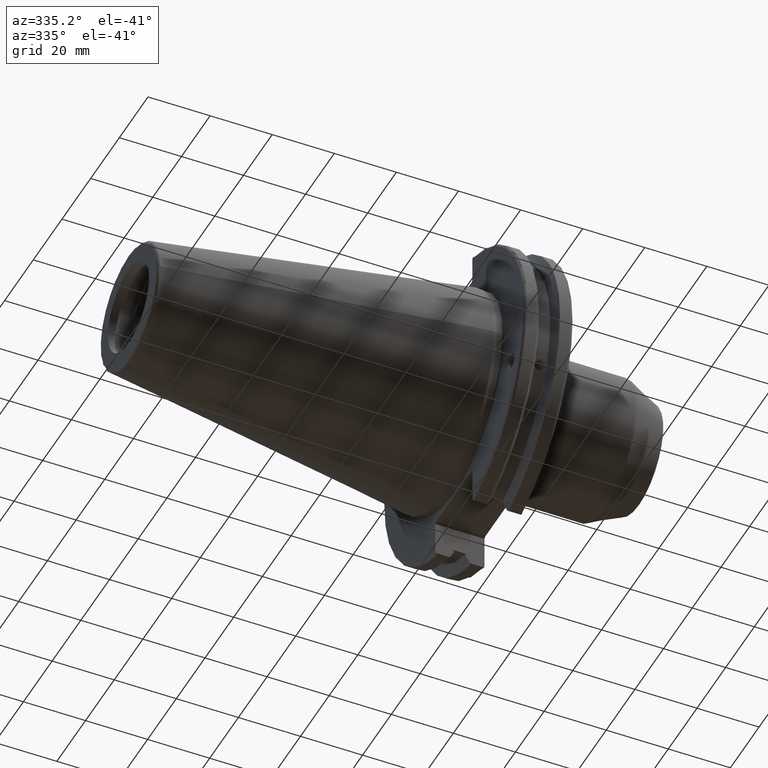
[diagram: clean part render]
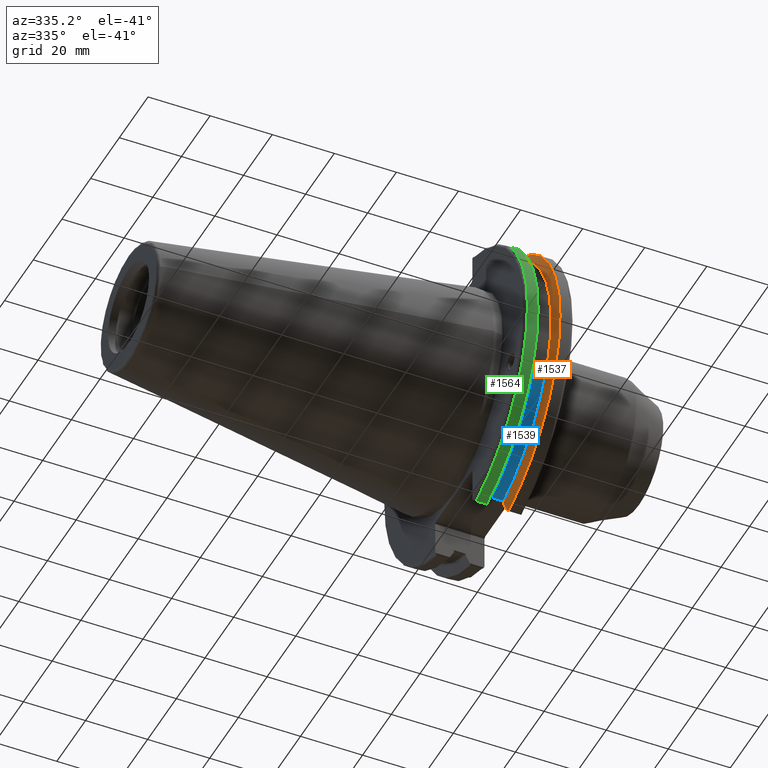
[diagram: same view with three faces highlighted in distinct colors, each labeled with its STEP entity id]
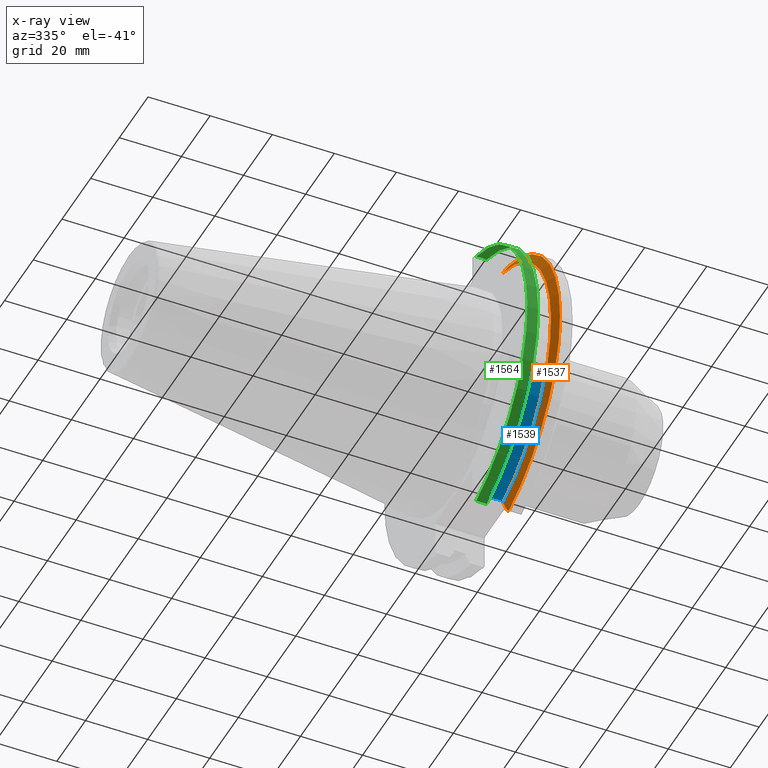
[diagram: x-ray of the same camera — body ghosted, the three highlighted faces saturated]
A machine part, auxiliary view with three faces highlighted in distinct colors.
The next image is the same camera in x-ray (body ghosted, the three faces saturated) — at least one of them is partly hidden behind the body in this view.
Their STEP definitions:

[orange] entity #1537 — the highlighted conical surface has half-angle 60 deg.
#15=(
BOUNDED_CURVE()
B_SPLINE_CURVE(2,(#2769,#2770,#2771),.UNSPECIFIED.,.F.,.F.)
B_SPLINE_CURVE_WITH_KNOTS((3,3),(0.,0.275823910674144),.UNSPECIFIED.)
CURVE()
GEOMETRIC_REPRESENTATION_ITEM()
RATIONAL_B_SPLINE_CURVE((1.,1.00038235575579,1.00012873637156))
REPRESENTATION_ITEM('')
);
#16=(
BOUNDED_CURVE()
B_SPLINE_CURVE(2,(#2773,#2774,#2775),.UNSPECIFIED.,.F.,.F.)
B_SPLINE_CURVE_WITH_KNOTS((3,3),(0.,0.0648240472898149),.UNSPECIFIED.)
CURVE()
GEOMETRIC_REPRESENTATION_ITEM()
RATIONAL_B_SPLINE_CURVE((1.,1.00011477674811,1.00019140645905))
REPRESENTATION_ITEM('')
);
#17=(
BOUNDED_CURVE()
B_SPLINE_CURVE(2,(#2779,#2780,#2781),.UNSPECIFIED.,.F.,.F.)
B_SPLINE_CURVE_WITH_KNOTS((3,3),(0.325260944932422,0.390084992222202),
 .UNSPECIFIED.)
CURVE()
GEOMETRIC_REPRESENTATION_ITEM()
RATIONAL_B_SPLINE_CURVE((1.00019140645944,1.00011477674834,1.))
REPRESENTATION_ITEM('')
);
#18=(
BOUNDED_CURVE()
B_SPLINE_CURVE(2,(#2783,#2784,#2785),.UNSPECIFIED.,.F.,.F.)
B_SPLINE_CURVE_WITH_KNOTS((3,3),(0.0558332664505639,0.331657177124505),
 .UNSPECIFIED.)
CURVE()
GEOMETRIC_REPRESENTATION_ITEM()
RATIONAL_B_SPLINE_CURVE((1.00012873636973,1.00038235575037,1.))
REPRESENTATION_ITEM('')
);
#45=CONICAL_SURFACE('',#1678,47.8172386482472,1.0471975511966);
#143=CIRCLE('',#1679,46.4219772964944);
#144=CIRCLE('',#1680,49.2125);
#145=CIRCLE('',#1681,46.4219772964944);
#213=FACE_OUTER_BOUND('',#312,.T.);
#312=EDGE_LOOP('',(#1157,#1158,#1159,#1160,#1161,#1162,#1163,#1164,#1165));
#402=B_SPLINE_CURVE_WITH_KNOTS('',3,(#2678,#2679,#2680,#2681,#2682,#2683,
#2684,#2685),.UNSPECIFIED.,.F.,.F.,(4,2,2,4),(0.42671286835872,0.441644498666905,
0.480313313223129,0.518982127779352),.UNSPECIFIED.);
#406=B_SPLINE_CURVE_WITH_KNOTS('',3,(#2740,#2741,#2742,#2743,#2744,#2745,
#2746,#2747),.UNSPECIFIED.,.F.,.F.,(4,2,2,4),(0.518982127779352,0.557650942335576,
0.5963197568918,0.611251387199985),.UNSPECIFIED.);
#673=VERTEX_POINT('',#2675);
#674=VERTEX_POINT('',#2677);
#681=VERTEX_POINT('',#2738);
#687=VERTEX_POINT('',#2766);
#688=VERTEX_POINT('',#2768);
#689=VERTEX_POINT('',#2772);
#690=VERTEX_POINT('',#2776);
#691=VERTEX_POINT('',#2778);
#692=VERTEX_POINT('',#2782);
#849=EDGE_CURVE('',#674,#673,#402,.T.);
#857=EDGE_CURVE('',#673,#681,#406,.T.);
#865=EDGE_CURVE('',#681,#687,#143,.T.);
#866=EDGE_CURVE('',#687,#688,#15,.T.);
#867=EDGE_CURVE('',#689,#688,#16,.T.);
#868=EDGE_CURVE('',#690,#689,#144,.T.);
#869=EDGE_CURVE('',#691,#690,#17,.T.);
#870=EDGE_CURVE('',#691,#692,#18,.T.);
#871=EDGE_CURVE('',#692,#674,#145,.T.);
#1157=ORIENTED_EDGE('',*,*,#849,.T.);
#1158=ORIENTED_EDGE('',*,*,#857,.T.);
#1159=ORIENTED_EDGE('',*,*,#865,.T.);
#1160=ORIENTED_EDGE('',*,*,#866,.T.);
#1161=ORIENTED_EDGE('',*,*,#867,.F.);
#1162=ORIENTED_EDGE('',*,*,#868,.F.);
#1163=ORIENTED_EDGE('',*,*,#869,.F.);
#1164=ORIENTED_EDGE('',*,*,#870,.T.);
#1165=ORIENTED_EDGE('',*,*,#871,.T.);
#1537=ADVANCED_FACE('',(#213),#45,.T.);
#1678=AXIS2_PLACEMENT_3D('',#2765,#1931,#1932);
#1679=AXIS2_PLACEMENT_3D('',#2767,#1933,#1934);
#1680=AXIS2_PLACEMENT_3D('',#2777,#1935,#1936);
#1681=AXIS2_PLACEMENT_3D('',#2786,#1937,#1938);
#1931=DIRECTION('center_axis',(1.,0.,0.));
#1932=DIRECTION('ref_axis',(0.,-1.,-1.22464679914735E-16));
#1933=DIRECTION('center_axis',(1.,0.,0.));
#1934=DIRECTION('ref_axis',(0.,0.,-1.));
#1935=DIRECTION('center_axis',(1.,0.,0.));
#1936=DIRECTION('ref_axis',(0.,0.,-1.));
#1937=DIRECTION('center_axis',(1.,0.,0.));
#1938=DIRECTION('ref_axis',(0.,0.,-1.));
#2675=CARTESIAN_POINT('',(13.227,-43.923494649906,-15.9868446375166));
#2677=CARTESIAN_POINT('',(13.042,-43.9096390749305,-15.0646464421033));
#2678=CARTESIAN_POINT('Ctrl Pts',(13.042,-43.9096390749305,-15.0646464421033));
#2679=CARTESIAN_POINT('Ctrl Pts',(13.0589815609661,-43.9250360001461,-15.1104047527575));
#2680=CARTESIAN_POINT('Ctrl Pts',(13.0750132459668,-43.9385582852181,-15.1564111356409));
#2681=CARTESIAN_POINT('Ctrl Pts',(13.1287132615496,-43.9797830409459,-15.3217566390708));
#2682=CARTESIAN_POINT('Ctrl Pts',(13.1648838933644,-43.9989016655819,-15.4570249042868));
#2683=CARTESIAN_POINT('Ctrl Pts',(13.2141913174802,-43.9931221605126,-15.7289849146254));
#2684=CARTESIAN_POINT('Ctrl Pts',(13.227,-43.9675796948952,-15.8657219718732));
#2685=CARTESIAN_POINT('Ctrl Pts',(13.227,-43.923494649906,-15.9868446375166));
#2738=CARTESIAN_POINT('',(13.042,-43.3201030900029,-16.6843832486479));
#2740=CARTESIAN_POINT('Ctrl Pts',(13.227,-43.923494649906,-15.9868446375166));
#2741=CARTESIAN_POINT('Ctrl Pts',(13.227,-43.8794096049169,-16.10796730316));
#2742=CARTESIAN_POINT('Ctrl Pts',(13.2141913174802,-43.8110833825828,-16.2291323464527));
#2743=CARTESIAN_POINT('Ctrl Pts',(13.1648838933644,-43.6406982153492,-16.441180795372));
#2744=CARTESIAN_POINT('Ctrl Pts',(13.1287132615496,-43.5391037343221,-16.5325130832406));
#2745=CARTESIAN_POINT('Ctrl Pts',(13.0750132459668,-43.4012416983557,-16.6326763251437));
#2746=CARTESIAN_POINT('Ctrl Pts',(13.0589815609661,-43.3613106941341,-16.6592273018006));
#2747=CARTESIAN_POINT('Ctrl Pts',(13.042,-43.3201030900029,-16.6843832486479));
#2765=CARTESIAN_POINT('Origin',(13.8475545170244,0.,0.));
#2766=CARTESIAN_POINT('',(13.042,-12.95,-44.5791147973604));
#2767=CARTESIAN_POINT('Origin',(13.042,0.,0.));
#2768=CARTESIAN_POINT('',(14.3747103943757,-12.95,-46.9780755322917));
#2769=CARTESIAN_POINT('Ctrl Pts',(13.042,-12.95,-44.5791147973604));
#2770=CARTESIAN_POINT('Ctrl Pts',(13.6908955094606,-12.95,-45.7494966802493));
#2771=CARTESIAN_POINT('Ctrl Pts',(14.3747103943757,-12.95,-46.9780755322917));
#2772=CARTESIAN_POINT('',(14.6531090340487,-13.4317035994433,-47.3440544806494));
#2773=CARTESIAN_POINT('Ctrl Pts',(14.6531090340487,-13.4317035994433,-47.3440544806494));
#2774=CARTESIAN_POINT('Ctrl Pts',(14.5128310333618,-13.1896660169967,-47.1601640966265));
#2775=CARTESIAN_POINT('Ctrl Pts',(14.3747103943757,-12.95,-46.9780755322917));
#2776=CARTESIAN_POINT('',(14.6531090340487,-13.4317035994433,47.3440544806494));
#2777=CARTESIAN_POINT('Origin',(14.6531090340487,0.,0.));
#2778=CARTESIAN_POINT('',(14.3747103943757,-12.95,46.9780755322917));
#2779=CARTESIAN_POINT('Ctrl Pts',(14.3747103943757,-12.95,46.9780755322917));
#2780=CARTESIAN_POINT('Ctrl Pts',(14.5128310333618,-13.1896660169966,47.1601640966265));
#2781=CARTESIAN_POINT('Ctrl Pts',(14.6531090340487,-13.4317035994433,47.3440544806494));
#2782=CARTESIAN_POINT('',(13.042,-12.95,44.5791147973604));
#2783=CARTESIAN_POINT('Ctrl Pts',(14.3747103943757,-12.95,46.9780755322917));
#2784=CARTESIAN_POINT('Ctrl Pts',(13.6908955094594,-12.95,45.7494966802471));
#2785=CARTESIAN_POINT('Ctrl Pts',(13.042,-12.95,44.5791147973604));
#2786=CARTESIAN_POINT('Origin',(13.042,0.,0.));

[blue] entity #1539 — the highlighted cylindrical surface (partial cylindrical patch) has radius 45.6435 mm, axis along (1, 0, 0).
#146=CIRCLE('',#1683,45.6435);
#147=CIRCLE('',#1685,45.6435);
#215=FACE_OUTER_BOUND('',#314,.T.);
#314=EDGE_LOOP('',(#1170,#1171,#1172,#1173));
#405=B_SPLINE_CURVE_WITH_KNOTS('',3,(#2723,#2724,#2725,#2726,#2727,#2728,
#2729,#2730,#2731,#2732,#2733,#2734,#2735,#2736,#2737),.UNSPECIFIED.,.F.,
 .F.,(4,2,2,3,2,2,4),(-0.231381164054419,-0.158232381135623,-0.0791161905678115,
0.,0.0791161905678115,0.158232381135623,0.231381164054565),
 .UNSPECIFIED.);
#463=LINE('',#2794,#556);
#556=VECTOR('',#1948,10.);
#679=VERTEX_POINT('',#2720);
#680=VERTEX_POINT('',#2722);
#693=VERTEX_POINT('',#2788);
#694=VERTEX_POINT('',#2792);
#855=EDGE_CURVE('',#680,#679,#405,.T.);
#872=EDGE_CURVE('',#680,#693,#146,.T.);
#874=EDGE_CURVE('',#679,#694,#147,.T.);
#875=EDGE_CURVE('',#694,#693,#463,.T.);
#1170=ORIENTED_EDGE('',*,*,#855,.T.);
#1171=ORIENTED_EDGE('',*,*,#874,.T.);
#1172=ORIENTED_EDGE('',*,*,#875,.T.);
#1173=ORIENTED_EDGE('',*,*,#872,.F.);
#1497=CYLINDRICAL_SURFACE('',#1684,45.6435);
#1539=ADVANCED_FACE('',(#215),#1497,.T.);
#1683=AXIS2_PLACEMENT_3D('',#2789,#1941,#1942);
#1684=AXIS2_PLACEMENT_3D('',#2791,#1944,#1945);
#1685=AXIS2_PLACEMENT_3D('',#2793,#1946,#1947);
#1941=DIRECTION('center_axis',(1.,0.,0.));
#1942=DIRECTION('ref_axis',(0.,0.,-1.));
#1944=DIRECTION('center_axis',(1.,0.,0.));
#1945=DIRECTION('ref_axis',(0.,1.,0.));
#1946=DIRECTION('center_axis',(1.,0.,0.));
#1947=DIRECTION('ref_axis',(0.,0.,-1.));
#1948=DIRECTION('',(1.,0.,0.));
#2720=CARTESIAN_POINT('',(9.21200000000001,-42.5884454651059,-16.4180816515115));
#2722=CARTESIAN_POINT('',(13.042,-42.5884454651059,-16.4180816515115));
#2723=CARTESIAN_POINT('Ctrl Pts',(13.042,-42.5884454651059,-16.4180816515115));
#2724=CARTESIAN_POINT('Ctrl Pts',(12.9357782240206,-42.5035323832641,-16.6383458840848));
#2725=CARTESIAN_POINT('Ctrl Pts',(12.784291924423,-42.4245077186417,-16.8380515255915));
#2726=CARTESIAN_POINT('Ctrl Pts',(12.4254949659982,-42.2908173017388,-17.1712159412199));
#2727=CARTESIAN_POINT('Ctrl Pts',(12.1893796719457,-42.2294695309474,-17.3208689126276));
#2728=CARTESIAN_POINT('Ctrl Pts',(11.6719940832128,-42.1475978938586,-17.5191491957165));
#2729=CARTESIAN_POINT('Ctrl Pts',(11.390720635226,-42.1271980081205,-17.5678194501937));
#2730=CARTESIAN_POINT('Ctrl Pts',(11.127,-42.1271980081205,-17.5678194501937));
#2731=CARTESIAN_POINT('Ctrl Pts',(10.863279364774,-42.1271980081205,-17.5678194501937));
#2732=CARTESIAN_POINT('Ctrl Pts',(10.5820059167872,-42.1475978938586,-17.5191491957165));
#2733=CARTESIAN_POINT('Ctrl Pts',(10.0646203280543,-42.2294695309474,-17.3208689126276));
#2734=CARTESIAN_POINT('Ctrl Pts',(9.8285050340018,-42.2908173017388,-17.1712159412199));
#2735=CARTESIAN_POINT('Ctrl Pts',(9.46970807557666,-42.4245077186418,-16.8380515255912));
#2736=CARTESIAN_POINT('Ctrl Pts',(9.31822177598176,-42.5035323832622,-16.6383458840897));
#2737=CARTESIAN_POINT('Ctrl Pts',(9.212,-42.5884454651059,-16.4180816515115));
#2788=CARTESIAN_POINT('',(13.042,-12.95,-43.7678716897452));
#2789=CARTESIAN_POINT('Origin',(13.042,0.,0.));
#2791=CARTESIAN_POINT('Origin',(11.127,0.,0.));
#2792=CARTESIAN_POINT('',(9.21200000000001,-12.95,-43.7678716897452));
#2793=CARTESIAN_POINT('Origin',(9.21200000000001,0.,0.));
#2794=CARTESIAN_POINT('',(11.127,-12.95,-43.7678716897452));

[green] entity #1564 — the highlighted cylindrical surface (partial cylindrical patch) has radius 49.2125 mm, axis along (1, 0, 0).
#169=CIRCLE('',#1731,49.2125);
#170=CIRCLE('',#1734,49.2125);
#240=FACE_OUTER_BOUND('',#347,.T.);
#347=EDGE_LOOP('',(#1330,#1331,#1332,#1333));
#505=LINE('',#3210,#598);
#506=LINE('',#3216,#599);
#598=VECTOR('',#2084,10.);
#599=VECTOR('',#2087,10.);
#761=VERTEX_POINT('',#3189);
#762=VERTEX_POINT('',#3198);
#763=VERTEX_POINT('',#3209);
#764=VERTEX_POINT('',#3215);
#967=EDGE_CURVE('',#761,#762,#169,.T.);
#969=EDGE_CURVE('',#762,#763,#505,.T.);
#971=EDGE_CURVE('',#764,#761,#506,.T.);
#972=EDGE_CURVE('',#763,#764,#170,.T.);
#1330=ORIENTED_EDGE('',*,*,#967,.F.);
#1331=ORIENTED_EDGE('',*,*,#971,.F.);
#1332=ORIENTED_EDGE('',*,*,#972,.F.);
#1333=ORIENTED_EDGE('',*,*,#969,.F.);
#1505=CYLINDRICAL_SURFACE('',#1733,49.2125);
#1564=ADVANCED_FACE('',(#240),#1505,.T.);
#1731=AXIS2_PLACEMENT_3D('',#3199,#2080,#2081);
#1733=AXIS2_PLACEMENT_3D('',#3214,#2085,#2086);
#1734=AXIS2_PLACEMENT_3D('',#3217,#2088,#2089);
#2080=DIRECTION('center_axis',(-1.,0.,0.));
#2081=DIRECTION('ref_axis',(0.,-1.,1.60812264967664E-16));
#2084=DIRECTION('',(1.,0.,0.));
#2085=DIRECTION('center_axis',(1.,0.,0.));
#2086=DIRECTION('ref_axis',(0.,-1.,1.22464679914735E-16));
#2087=DIRECTION('',(-1.,0.,0.));
#2088=DIRECTION('center_axis',(1.,0.,0.));
#2089=DIRECTION('ref_axis',(0.,0.,-1.));
#3189=CARTESIAN_POINT('',(4.175,-13.4317035994433,-47.3440544806494));
#3198=CARTESIAN_POINT('',(4.175,-13.4317035994433,47.3440544806494));
#3199=CARTESIAN_POINT('Origin',(4.175,0.,0.));
#3209=CARTESIAN_POINT('',(7.60089096595127,-13.4317035994433,47.3440544806494));
#3210=CARTESIAN_POINT('',(5.38794548297563,-13.4317035994433,47.3440544806494));
#3214=CARTESIAN_POINT('Origin',(5.38794548297563,0.,0.));
#3215=CARTESIAN_POINT('',(7.60089096595127,-13.4317035994433,-47.3440544806494));
#3216=CARTESIAN_POINT('',(5.38794548297563,-13.4317035994433,-47.3440544806494));
#3217=CARTESIAN_POINT('Origin',(7.60089096595127,0.,0.));